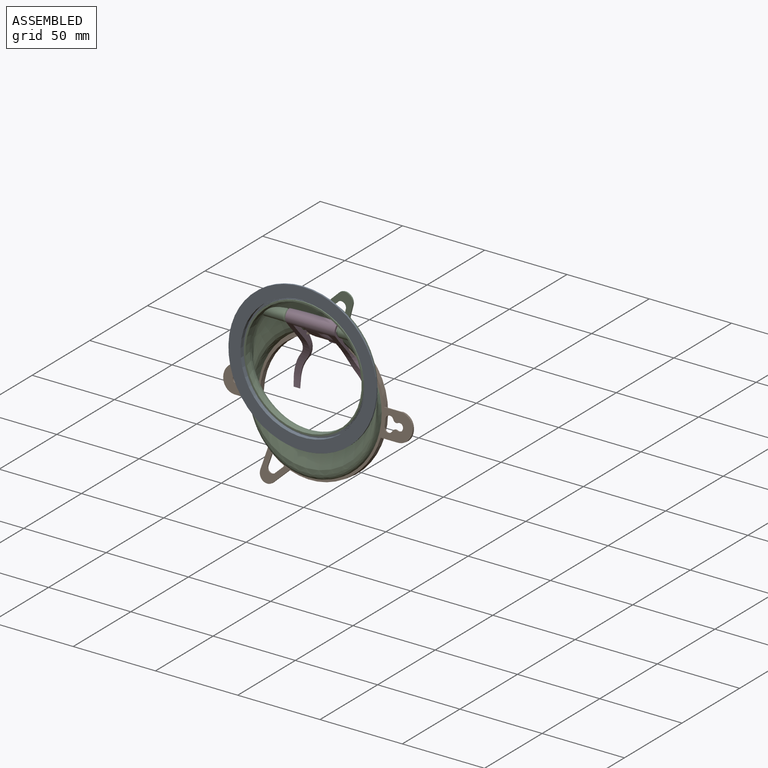
[diagram: assembled view]
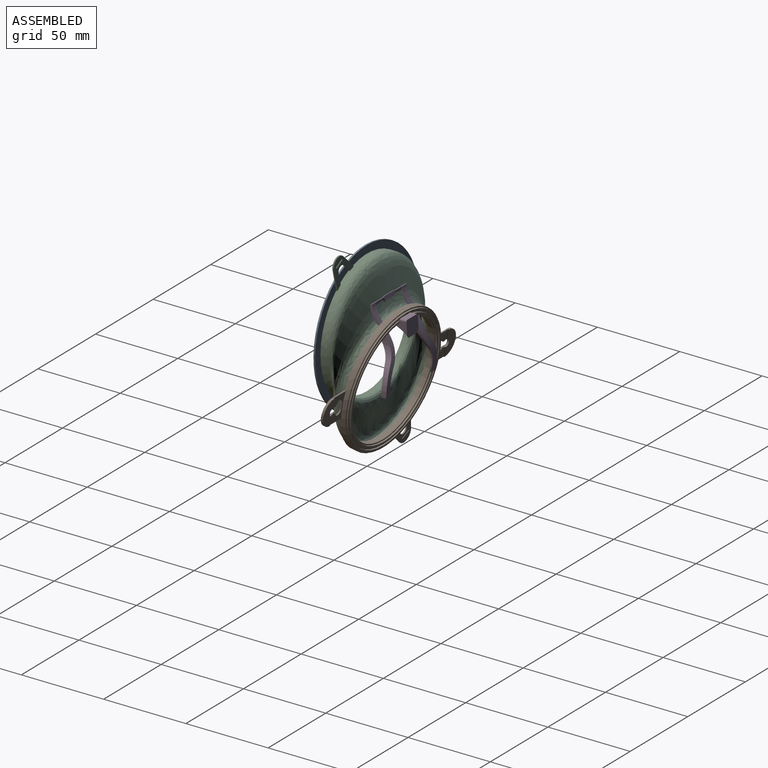
[diagram: assembled view, second angle]
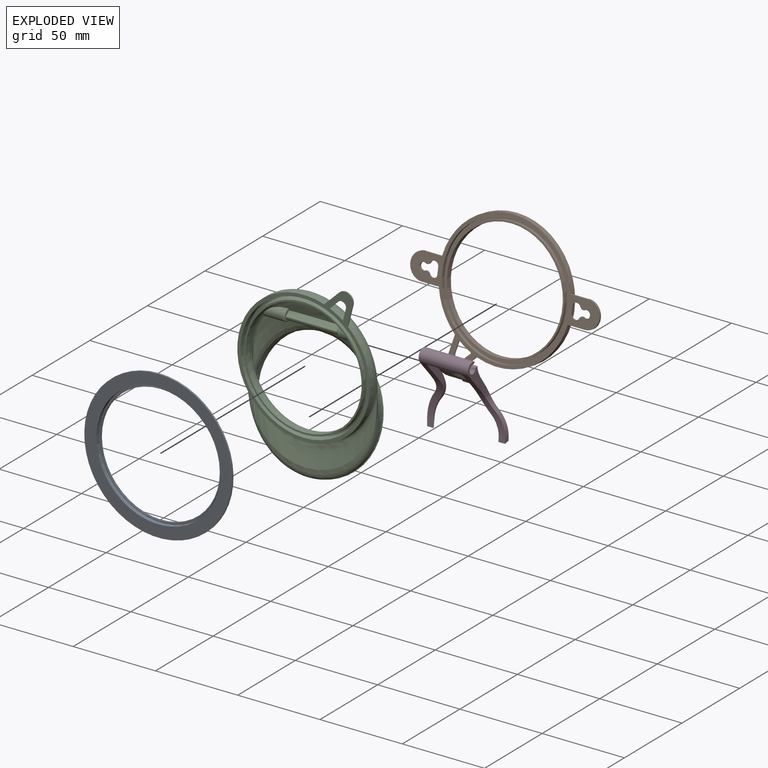
[diagram: exploded view]
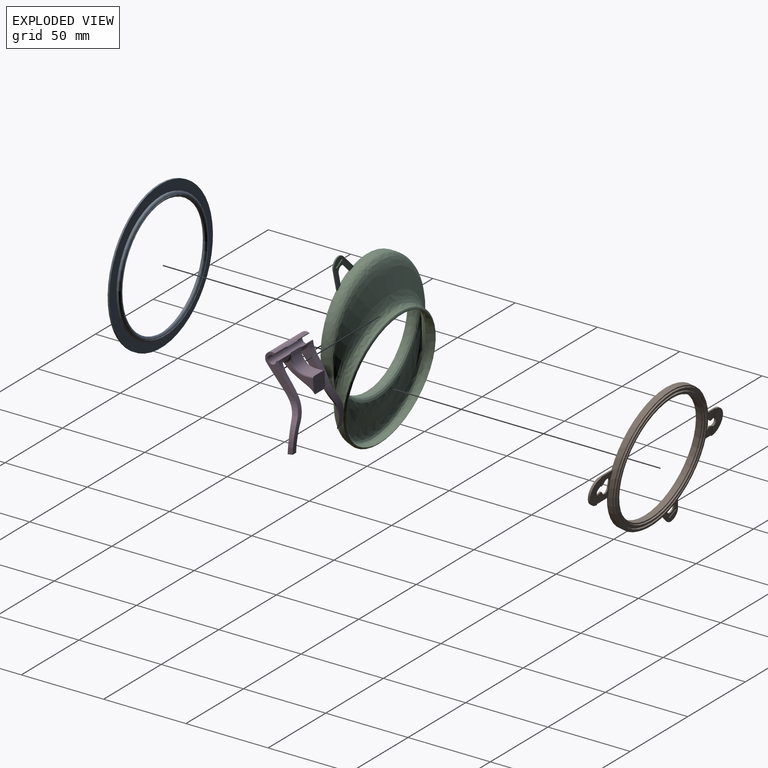
[diagram: exploded view, second angle]
ASSEMBLY  parts=4 mates=3
PART A: 20 faces, bbox 90x3.3x90 mm
  f0: cylinder r=38.68mm len=77.35mm, axis (0,-1,0), area 243mm2, adj f1,f19
  f1: plane 78x78mm, normal (0,1,0), area 79.3mm2, adj f0,f2
  f2: cylinder r=39mm len=78mm, axis (0,-1,0), area 98mm2, adj f1,f3
  f3: torus R=37.5mm, axis (0,-1,0), area 401.1mm2, adj f2,f4
  f4: cylinder r=37.67mm len=75.35mm, axis (0,-1,0), area 116.2mm2, adj f3,f5
  f5: plane 75.35x75.35mm, normal (0,-1,0), area 82.5mm2, adj f4,f6
  f6: cylinder r=37.32mm len=74.65mm, axis (0,-1,0), area 115.1mm2, adj f5,f7
  f7: torus R=37.5mm, axis (0,-1,0), area 382.1mm2, adj f6,f8
  f8: cylinder r=36mm len=72mm, axis (0,-1,0), area 90.5mm2, adj f7,f9
  f9: plane 72.65x72.65mm, normal (0,1,0), area 73.8mm2, adj f8,f10
  f10: cylinder r=36.33mm len=72.65mm, axis (0,-1,0), area 114.1mm2, adj f9,f11
  f11: plane 73.45x73.45mm, normal (0,1,0), area 91.8mm2, adj f10,f12
  f12: cylinder r=36.73mm len=73.45mm, axis (0,-1,0), area 115.4mm2, adj f11,f13
  f13: plane 74.65x74.65mm, normal (0,1,0), area 139.6mm2, adj f12,f14
  f14: cylinder r=37.32mm len=74.65mm, axis (0,-1,0), area 117.3mm2, adj f13,f15
  f15: plane 75.35x75.35mm, normal (0,1,0), area 82.5mm2, adj f14,f16
  f16: cylinder r=37.67mm len=75.35mm, axis (0,-1,0), area 591.8mm2, adj f15,f17
  f17: plane 90x90mm, normal (0,1,0), area 1902.5mm2, adj f16,f18
  f18: cylinder r=45mm len=90mm, axis (0,-1,0), area 282.7mm2, adj f17,f19
  f19: plane 90x90mm, normal (0,-1,0), area 1662.7mm2, adj f0,f18
PART B: 60 faces, bbox 115x4.5x88.3 mm
  f0: cylinder r=40mm len=80mm, axis (0,-1,0), area 846.4mm2, adj f18,f19,f26,f27,f29,f39,f40,f42
  f1: cylinder r=39.25mm len=78.5mm, axis (0,-1,0), area 246.6mm2, adj f2,f19
  f2: plane 78.5x78.5mm, normal (0,-1,0), area 303.4mm2, adj f1,f3
  f3: cylinder r=38mm len=76mm, axis (0,-1,0), area 238.8mm2, adj f2,f4
  f4: plane 76x76mm, normal (0,-1,0), area 235.6mm2, adj f3,f5
  f5: cylinder r=37mm len=74mm, axis (0,-1,0), area 232.5mm2, adj f4,f6
  f6: plane 74x74mm, normal (0,-1,0), area 285.7mm2, adj f5,f7
  f7: cylinder r=35.75mm len=71.5mm, axis (0,-1,0), area 224.6mm2, adj f6,f8
  f8: plane 71.5x71.5mm, normal (0,-1,0), area 166.7mm2, adj f7,f9
  f9: cylinder r=35mm len=70mm, axis (0,-1,0), area 769.7mm2, adj f8,f10
  f10: plane 72x72mm, normal (0,1,0), area 223.1mm2, adj f9,f11
  f11: cylinder r=36mm len=72mm, axis (0,-1,0), area 181mm2, adj f10,f12
  f12: plane 72x72mm, normal (0,-1,0), area 67.6mm2, adj f11,f13
  f13: cylinder r=35.7mm len=71.4mm, axis (0,-1,0), area 403.8mm2, adj f12,f14
  f14: plane 76.6x76.6mm, normal (0,1,0), area 604.4mm2, adj f13,f15
  f15: cylinder r=38.3mm len=76.6mm, axis (0,-1,0), area 433.2mm2, adj f14,f16
  f16: plane 76.6x76.6mm, normal (0,-1,0), area 71.9mm2, adj f15,f17
  f17: cylinder r=38mm len=76mm, axis (0,-1,0), area 191mm2, adj f16,f18
  f18: plane 115x88.3mm, normal (0,1,0), area 996.9mm2, adj f0,f17,f20,f21,f22,f23,f24,f25
  f19: plane 80x80mm, normal (0,-1,0), area 186.7mm2, adj f0,f1
  f20: cylinder r=2.25mm len=4.5mm, axis (0,1,0), area 10.8mm2, adj f18,f21,f28,f29,f30,f31,f32
  f21: cylinder r=2.12mm len=2.92mm, axis (0,1,0), area 2.8mm2, adj f18,f20,f22,f29
  f22: cylinder r=2.5mm len=4.79mm, axis (0,1,0), area 5.5mm2, adj f18,f21,f23,f29
  f23: plane 4x0.8mm, normal (1,0,0), area 3.2mm2, adj f18,f22,f24,f29
  f24: cylinder r=2.5mm len=4.79mm, axis (0,1,0), area 5.5mm2, adj f18,f23,f28,f29
  f25: cylinder r=8mm len=16mm, axis (0,1,0), area 32.6mm2, adj f18,f26,f27,f30,f31,f32
  f26: plane 10.31x0.8mm, normal (0,0,1), area 8.2mm2, adj f0,f18,f25,f29
  f27: plane 10.31x0.8mm, normal (0,0,-1), area 8.2mm2, adj f0,f18,f25,f29
  f28: cylinder r=2.12mm len=2.92mm, axis (0,1,0), area 2.8mm2, adj f18,f20,f24,f29
  f29: plane 16x10.31mm, normal (0,-1,0), area 101.5mm2, adj f0,f20,f21,f22,f23,f24,f26,f27
  f30: plane 5.76x0.5mm, normal (-0.91,-0.42,0), area 3.2mm2, adj f20,f25,f29,f32
  f31: plane 5.76x0.5mm, normal (-0.91,-0.42,0), area 3.2mm2, adj f20,f25,f29,f32
  f32: plane 15.99x7.77mm, normal (0,-1,0), area 89.9mm2, adj f20,f25,f30,f31
  f33: cylinder r=2.25mm len=4.5mm, axis (0,1,0), area 10.8mm2, adj f18,f34,f41,f42,f43,f44,f45
  f34: cylinder r=2.12mm len=2.92mm, axis (0,1,0), area 2.8mm2, adj f18,f33,f35,f42
  f35: cylinder r=2.5mm len=4.79mm, axis (0,1,0), area 5.5mm2, adj f18,f34,f36,f42
  f36: plane 4x0.8mm, normal (-1,0,0), area 3.2mm2, adj f18,f35,f37,f42
  f37: cylinder r=2.5mm len=4.79mm, axis (0,1,0), area 5.5mm2, adj f18,f36,f41,f42
  f38: cylinder r=8mm len=16mm, axis (0,1,0), area 32.6mm2, adj f18,f39,f40,f43,f44,f45
  f39: plane 10.31x0.8mm, normal (0,0,1), area 8.2mm2, adj f0,f18,f38,f42
  f40: plane 10.31x0.8mm, normal (0,0,-1), area 8.2mm2, adj f0,f18,f38,f42
  f41: cylinder r=2.12mm len=2.92mm, axis (0,1,0), area 2.8mm2, adj f18,f33,f37,f42
  f42: plane 16x10.31mm, normal (0,-1,0), area 101.5mm2, adj f0,f33,f34,f35,f36,f37,f39,f40
  f43: plane 5.76x0.5mm, normal (0.91,-0.42,0), area 3.2mm2, adj f33,f38,f42,f45
  f44: plane 5.76x0.5mm, normal (0.91,-0.42,0), area 3.2mm2, adj f33,f38,f42,f45
  f45: plane 15.99x7.77mm, normal (0,-1,0), area 89.9mm2, adj f33,f38,f43,f44
  f46: plane 8.87x8.65mm, normal (0.7,0,0.72), area 9.9mm2, adj f18,f47,f52,f59
  f47: cylinder r=5mm len=8.49mm, axis (0,1,0), area 10.4mm2, adj f18,f46,f48,f52
  f48: plane 12x3.06mm, normal (-0.97,0,-0.25), area 9.9mm2, adj f18,f47,f52,f56
  f49: plane 6.31x1.61mm, normal (0.97,0,0.25), area 5.2mm2, adj f18,f50,f52,f57
  f50: cylinder r=2.8mm len=4.75mm, axis (0,1,0), area 5.8mm2, adj f18,f49,f51,f52
  f51: plane 4.66x4.55mm, normal (-0.7,0,-0.72), area 5.2mm2, adj f18,f50,f52,f58
  f52: plane 18.73x17.86mm, normal (0,-1,0), area 112.4mm2, adj f0,f46,f47,f48,f49,f50,f51,f53
  f53: sphere r=0.5mm, area 0.8mm2, adj f52,f54
  f54: cylinder r=0.5mm len=5.16mm, axis (0.87,0,0.5), area 8.4mm2, adj f52,f53,f55
  f55: sphere r=0.5mm, area 0.8mm2, adj f52,f54
  f56: cylinder r=0.5mm len=0.8mm, axis (0,-1,0), area 0.4mm2, adj f0,f18,f48,f52
  f57: cylinder r=0.5mm len=0.8mm, axis (0,-1,0), area 0.8mm2, adj f0,f18,f49,f52
  f58: cylinder r=0.5mm len=0.81mm, axis (0,-1,0), area 0.8mm2, adj f0,f18,f51,f52
  f59: cylinder r=0.5mm len=0.8mm, axis (0,-1,0), area 0.4mm2, adj f0,f18,f46,f52
PART C: 41 faces, bbox 84.5x26.1x114.4 mm
  f0: plane 31.51x2.56mm, normal (0,0.64,-0.77), area 89.9mm2, adj f3,f32,f34,f39
  f1: cylinder r=2.5mm len=31.5mm, axis (-1,0,0), area 111.9mm2, adj f32,f34,f38,f39
  f2: plane 31.5x2.67mm, normal (0,-0.64,0.77), area 109.8mm2, adj f32,f34,f38,f40
  f3: bspline ~97.02x76.06mm, area 4498.1mm2, adj f0,f5,f24,f31,f32,f33,f34,f35
  f4: cylinder r=40.3mm len=80.6mm, axis (0,1,0), area 880.4mm2, adj f13,f14,f15,f16,f17,f20,f29
  f5: cylinder r=35.3mm len=70.6mm, axis (0,1,0), area 776.3mm2, adj f3,f6
  f6: plane 72.6x72.6mm, normal (0,-1,0), area 224.9mm2, adj f5,f7
  f7: cylinder r=36.3mm len=72.6mm, axis (0,1,0), area 182.5mm2, adj f6,f8
  f8: plane 72.6x72.6mm, normal (0,1,0), area 68.1mm2, adj f7,f9
  f9: cylinder r=36mm len=72mm, axis (0,1,0), area 558.6mm2, adj f8,f30
  f10: cylinder r=38.6mm len=77.2mm, axis (0,1,0), area 841.7mm2, adj f11,f30
  f11: plane 77.2x77.2mm, normal (0,1,0), area 72.5mm2, adj f10,f12
  f12: cylinder r=38.3mm len=76.6mm, axis (0,1,0), area 192.5mm2, adj f11,f13
  f13: plane 88.9x80.6mm, normal (0,-1,0), area 611.8mm2, adj f4,f12,f14,f15,f16,f17,f18,f19
  f14: plane 9.07x8.85mm, normal (-0.7,0,0.72), area 10.1mm2, adj f4,f13,f18,f20
  f15: plane 12.22x3.11mm, normal (0.97,0,-0.25), area 10.1mm2, adj f4,f13,f18,f20
  f16: plane 6.97x1.77mm, normal (-0.97,0,0.25), area 5.8mm2, adj f4,f13,f19,f20
  f17: plane 5.18x5.05mm, normal (0.7,0,-0.72), area 5.8mm2, adj f4,f13,f19,f20
  f18: cylinder r=5mm len=8.49mm, axis (0,-1,0), area 10.4mm2, adj f13,f14,f15,f20
  f19: cylinder r=2.8mm len=4.75mm, axis (0,-1,0), area 5.8mm2, adj f13,f16,f17,f20
  f20: plane 18.45x17.56mm, normal (0,1,0), area 111.8mm2, adj f4,f14,f15,f16,f17,f18,f19,f21
  f21: sphere r=0.5mm, area 0.8mm2, adj f20,f22
  f22: cylinder r=0.5mm len=5.16mm, axis (-0.87,0,0.5), area 8.4mm2, adj f20,f21,f23
  f23: sphere r=0.5mm, area 0.8mm2, adj f20,f22
  f24: cylinder r=37.53mm len=75.05mm, axis (0,0.98,-0.17), area 769.2mm2, adj f3,f25
  f25: torus R=37.35mm, axis (0,0.98,-0.17), area 399.6mm2, adj f24,f28
  f26: cylinder r=38.52mm len=77.05mm, axis (0,0.98,-0.17), area 242.1mm2, adj f27,f29
  f27: plane 77.7x76.52mm, normal (0,-0.98,0.17), area 79mm2, adj f26,f28
  f28: cylinder r=38.85mm len=77.7mm, axis (0,0.98,-0.17), area 97.6mm2, adj f25,f27
  f29: bspline ~102.2x80.56mm, area 5341.9mm2, adj f4,f26
  f30: revolved ~77.2x77.2mm, area 1079mm2, adj f9,f10
  f31: cylinder r=2.5mm len=30.23mm, axis (-1,0,0), area 27.9mm2, adj f3,f40
  f32: plane 5.5x4.25mm, normal (-1,0,0), area 5.5mm2, adj f0,f1,f2,f3,f37,f38,f39,f40
  f33: cylinder r=3.75mm len=12.43mm, axis (-1,0,0), area 115.8mm2, adj f3,f37
  f34: plane 5.5x4.25mm, normal (1,0,0), area 5.5mm2, adj f0,f1,f2,f3,f36,f38,f39,f40
  f35: cylinder r=3.75mm len=12.43mm, axis (1,0,0), area 115.8mm2, adj f3,f36
  f36: torus R=2.75mm, axis (-1,0,0), area 19.4mm2, adj f3,f34,f35
  f37: torus R=2.75mm, axis (1,0,0), area 19.4mm2, adj f3,f32,f33
  f38: cylinder r=0.2mm len=31.5mm, axis (-1,0,0), area 5.4mm2, adj f1,f2,f32,f34
  f39: cylinder r=0.2mm len=31.5mm, axis (-1,0,0), area 5.4mm2, adj f0,f1,f32,f34
  f40: cylinder r=0.2mm len=31.5mm, axis (-1,0,0), area 5.4mm2, adj f2,f3,f31,f32,f34
PART D: 96 faces, bbox 47.5x27.6x49.9 mm
  f0: cylinder r=4.1mm len=30mm, axis (1,0,0), area 420.6mm2, adj f1,f6,f7,f11,f22,f25,f51,f52
  f1: plane 21.01x20.11mm, normal (1,0,0), area 109mm2, adj f0,f3,f11,f13,f20,f34,f35,f50
  f2: cylinder r=4.1mm len=9.08mm, axis (1,0,0), area 2.1mm2, adj f9,f67,f69,f71,f72,f73
  f3: cylinder r=2.6mm len=30mm, axis (1,0,0), area 376.6mm2, adj f1,f6,f44,f45,f46,f47,f48,f49
  f4: plane 7.25x0.8mm, normal (0,0.64,-0.77), area 7.5mm2, adj f40,f41,f54,f61
  f5: plane 7.25x0.8mm, normal (0,-0.64,0.77), area 7.5mm2, adj f42,f43,f47,f71
  f6: plane 20.66x18.74mm, normal (-1,0,0), area 106.1mm2, adj f0,f3,f22,f24,f31,f32,f33,f44
  f7: extruded ~23.09x14.45mm, area 194mm2, adj f0,f8,f84,f85
  f8: cylinder r=244.75mm len=10mm, axis (-1,0,0), area 95.7mm2, adj f7,f9,f10,f21,f80,f82,f84,f85
  f9: extruded ~14.59x9.87mm, area 155.1mm2, adj f2,f8,f66,f70,f80,f81,f82,f83
  f10: plane 17.9x10.79mm, normal (1,0,0), area 49.6mm2, adj f8,f80,f85,f92
  f11: extruded ~39.48x22.3mm, area 200.6mm2, adj f0,f1,f12,f14,f15,f16,f17,f18
  f12: extruded ~4.04x0.75mm, area 3mm2, adj f11,f17,f18,f75
  f13: extruded ~42.9x18.25mm, area 131.9mm2, adj f1,f18,f19,f20,f68,f75,f76,f77
  f14: plane 14.29x12.76mm, normal (-1,0,0), area 50.2mm2, adj f11,f15,f76,f95
  f15: cylinder r=19mm len=12.13mm, axis (0,1,0), area 23.1mm2, adj f11,f14,f16,f77
  f16: extruded ~12.94x4.36mm, area 23.4mm2, adj f11,f15,f17,f78
  f17: extruded ~1.69x1.57mm, area 2.3mm2, adj f11,f12,f16,f75,f79
  f18: extruded ~2.99x1.37mm, area 3mm2, adj f11,f12,f13,f19,f75
  f19: extruded ~15.7x5.65mm, area 54.1mm2, adj f11,f13,f18,f20
  f20: cylinder r=15mm len=9.57mm, axis (0,1,0), area 42.9mm2, adj f1,f11,f13,f19
  f21: plane 17.9x10.79mm, normal (-1,0,0), area 49.6mm2, adj f8,f82,f84,f88
  f22: extruded ~39.48x22.3mm, area 197.7mm2, adj f0,f6,f23,f25,f26,f27,f28,f29
  f23: extruded ~4.19x3.51mm, area 14.1mm2, adj f22,f28,f29,f74
  f24: extruded ~9.07x5.14mm, area 42.3mm2, adj f6,f25,f65,f74
  f25: plane 17.62x17.18mm, normal (1,0,0), area 80.2mm2, adj f0,f22,f24,f26,f65,f74
  f26: cylinder r=19mm len=12.13mm, axis (0,1,0), area 26.8mm2, adj f22,f25,f27,f74
  f27: extruded ~12.94x4.36mm, area 14.8mm2, adj f22,f26,f28,f74
  f28: extruded ~4.33x0.57mm, area 1.2mm2, adj f22,f23,f27,f74
  f29: extruded ~4.13x0.56mm, area 1.1mm2, adj f22,f23,f30,f74
  f30: extruded ~15.7x5.28mm, area 19.6mm2, adj f22,f29,f31,f74
  f31: cylinder r=15mm len=9.57mm, axis (0,1,0), area 30.2mm2, adj f6,f22,f30,f74
  f32: plane 9.04x0.89mm, normal (0,-0.64,0.77), area 10.5mm2, adj f6,f37,f44,f65
  f33: plane 9.04x0.88mm, normal (0,0.64,-0.77), area 10.4mm2, adj f6,f36,f51,f58
  f34: plane 9.04x0.89mm, normal (0,-0.64,0.77), area 10.5mm2, adj f1,f39,f50,f68
  f35: plane 9.04x0.88mm, normal (0,0.64,-0.77), area 10.4mm2, adj f1,f38,f57,f64
  f36: cylinder r=5mm len=1.67mm, axis (0,-0.77,-0.64), area 1.9mm2, adj f33,f41,f52,f59
  f37: cylinder r=5mm len=1.67mm, axis (0,-0.77,-0.64), area 1.9mm2, adj f32,f43,f45,f66,f67
  f38: cylinder r=5mm len=1.67mm, axis (0,0.77,0.64), area 1.9mm2, adj f35,f40,f56,f63
  f39: cylinder r=5mm len=1.67mm, axis (0,0.77,0.64), area 1.9mm2, adj f34,f42,f49,f70,f72
  f40: cylinder r=2mm len=0.92mm, axis (0,0.77,0.64), area 0.7mm2, adj f4,f38,f55,f62
  f41: cylinder r=2mm len=0.92mm, axis (0,-0.77,-0.64), area 0.7mm2, adj f4,f36,f53,f60
  f42: cylinder r=2mm len=0.92mm, axis (0,0.77,0.64), area 0.7mm2, adj f5,f39,f48,f73
  f43: cylinder r=2mm len=0.92mm, axis (0,-0.77,-0.64), area 0.7mm2, adj f5,f37,f46,f69
  f44: cylinder r=0.3mm len=9.04mm, axis (1,0,0), area 2.1mm2, adj f3,f6,f32,f45
  f45: bspline ~3.84x1.18mm, area 0.4mm2, adj f3,f37,f44,f46
  f46: bspline ~1.1x0.52mm, area 0.2mm2, adj f3,f43,f45,f47
  f47: cylinder r=0.3mm len=7.25mm, axis (1,0,0), area 2.1mm2, adj f3,f5,f46,f48
  f48: bspline ~1.13x0.4mm, area 0.2mm2, adj f3,f42,f47,f49
  f49: bspline ~3.84x1.18mm, area 0.4mm2, adj f3,f39,f48,f50
  f50: cylinder r=0.3mm len=9.04mm, axis (1,0,0), area 2.1mm2, adj f1,f3,f34,f49
  f51: cylinder r=0.3mm len=9.04mm, axis (1,0,0), area 5.8mm2, adj f0,f6,f33,f52
  f52: bspline ~3.43x0.97mm, area 1.1mm2, adj f0,f36,f51,f53
  f53: bspline ~1.6x0.71mm, area 0.4mm2, adj f0,f41,f52,f54
  f54: cylinder r=0.3mm len=7.25mm, axis (1,0,0), area 4.4mm2, adj f0,f4,f53,f55
  f55: bspline ~1.6x0.71mm, area 0.4mm2, adj f0,f40,f54,f56
  f56: bspline ~3.43x0.97mm, area 1.1mm2, adj f0,f38,f55,f57
  f57: cylinder r=0.3mm len=9.04mm, axis (1,0,0), area 5.8mm2, adj f0,f1,f35,f56
  f58: cylinder r=0.3mm len=9.04mm, axis (1,0,0), area 2.1mm2, adj f3,f6,f33,f59
  f59: bspline ~3.84x1.17mm, area 0.4mm2, adj f3,f36,f58,f60
  f60: bspline ~1.13x0.41mm, area 0.2mm2, adj f3,f41,f59,f61
  f61: cylinder r=0.3mm len=7.25mm, axis (1,0,0), area 2.1mm2, adj f3,f4,f60,f62
  f62: bspline ~1.1x0.52mm, area 0.2mm2, adj f3,f40,f61,f63
  f63: bspline ~3.84x1.17mm, area 0.4mm2, adj f3,f38,f62,f64
  f64: cylinder r=0.3mm len=9.04mm, axis (1,0,0), area 2.1mm2, adj f1,f3,f35,f63
  f65: cylinder r=0.3mm len=9.04mm, axis (-1,0,0), area 5.2mm2, adj f0,f6,f24,f25,f32,f66
  f66: bspline ~2.37x0.86mm, area 0.8mm2, adj f0,f9,f37,f65,f67,f83,f86
  f67: bspline ~1.72x0.97mm, area 0.2mm2, adj f2,f37,f66,f69
  f68: cylinder r=0.3mm len=9.04mm, axis (-1,0,0), area 5.2mm2, adj f0,f1,f13,f34,f70,f76,f94
  f69: bspline ~1.6x0.75mm, area 0.4mm2, adj f2,f43,f67,f71
  f70: bspline ~2.37x0.86mm, area 0.8mm2, adj f0,f9,f39,f68,f72,f81,f90
  f71: cylinder r=0.3mm len=7.25mm, axis (1,0,0), area 4.4mm2, adj f2,f5,f69,f73
  f72: bspline ~2.09x1.1mm, area 0.2mm2, adj f2,f39,f70,f73
  f73: bspline ~1.6x0.75mm, area 0.4mm2, adj f2,f42,f71,f72
  f74: cylinder r=45mm len=37.34mm, axis (1,0,0), area 158.8mm2, adj f6,f23,f24,f25,f26,f27,f28,f29
  f75: cylinder r=45mm len=4.04mm, axis (-1,0,0), area 11.5mm2, adj f12,f13,f17,f18,f79
  f76: bspline ~19.33x13.68mm, area 35.8mm2, adj f13,f14,f68,f77,f94
  f77: bspline ~16.97x8.95mm, area 31.3mm2, adj f13,f15,f76,f78
  f78: bspline ~17.04x7.66mm, area 31mm2, adj f13,f16,f77,f79
  f79: bspline ~8.38x1.72mm, area 2mm2, adj f13,f17,f75,f78
  f80: bspline ~16.23x8.02mm, area 26.4mm2, adj f8,f9,f10,f81,f91
  f81: bspline ~2.78x1.18mm, area 1mm2, adj f9,f70,f80,f90
  f82: bspline ~16.23x8.02mm, area 26.4mm2, adj f8,f9,f21,f83,f87
  f83: bspline ~2.78x1.18mm, area 1mm2, adj f9,f66,f82,f86
  f84: bspline ~26.16x17.66mm, area 56.4mm2, adj f7,f8,f21,f89
  f85: bspline ~26.16x17.66mm, area 56.4mm2, adj f7,f8,f10,f93
  f86: bspline ~2.34x0.98mm, area 1.1mm2, adj f0,f66,f83,f87
  f87: bspline ~3.26x1.99mm, area 3.3mm2, adj f0,f82,f86,f88
  f88: torus R=5.6mm, axis (-1,0,0), area 6.6mm2, adj f0,f21,f87,f89
  f89: bspline ~4.93x3mm, area 4.3mm2, adj f0,f84,f88
  f90: bspline ~2.34x0.98mm, area 1.1mm2, adj f0,f70,f81,f91
  f91: bspline ~3.26x1.99mm, area 3.3mm2, adj f0,f80,f90,f92
  f92: torus R=5.6mm, axis (1,0,0), area 6.6mm2, adj f0,f10,f91,f93
  f93: bspline ~5.05x3mm, area 4.3mm2, adj f0,f85,f92
  f94: bspline ~4.63x2.8mm, area 5.2mm2, adj f0,f68,f76,f95
  f95: torus R=5.6mm, axis (1,0,0), area 13.7mm2, adj f0,f11,f14,f94
PLACE A rot(axis=(1,0,0),180deg) t=(0,0,0)mm
PLACE B rot(axis=(1,0,0),170deg) t=(0,12.39,-24.08)mm
PLACE C t=(0,0,0.3)mm
PLACE D rot(axis=(-1,0,0),4.8deg) t=(0,-1.73,1.17)mm
MATE fastened A.f0 <-> C.f4  axis (0,1,0) through (0,0,0)mm
MATE revolute D.f0 <-> C.f1  axis (1,0,0) through (0,9.5,21.3)mm
MATE fastened B.f0 <-> C.f25  axis (0,0.98,-0.17) through (0,13.18,-24.22)mm
